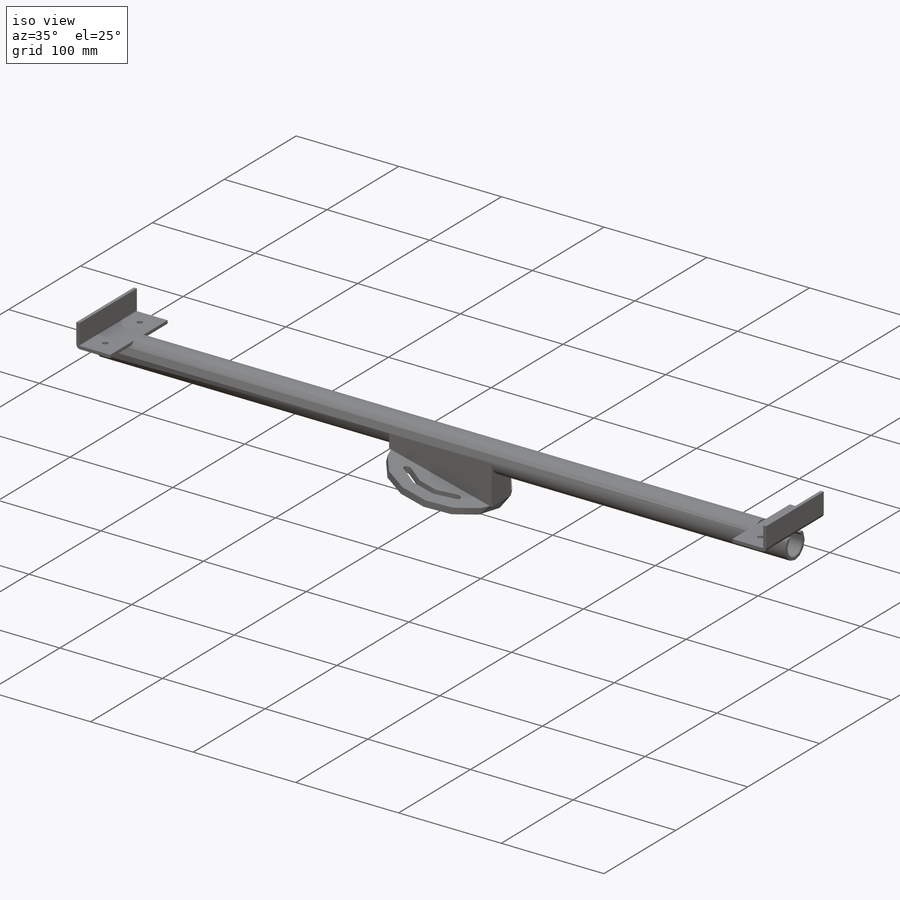
[diagram: iso view]
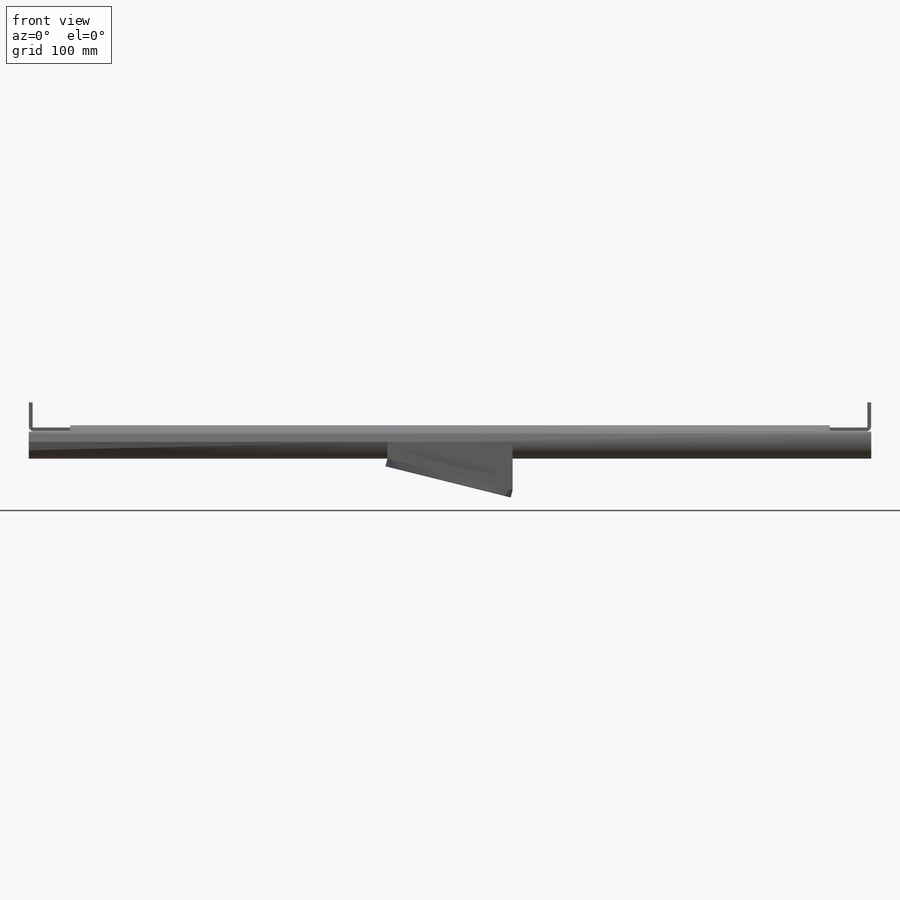
[diagram: front view]
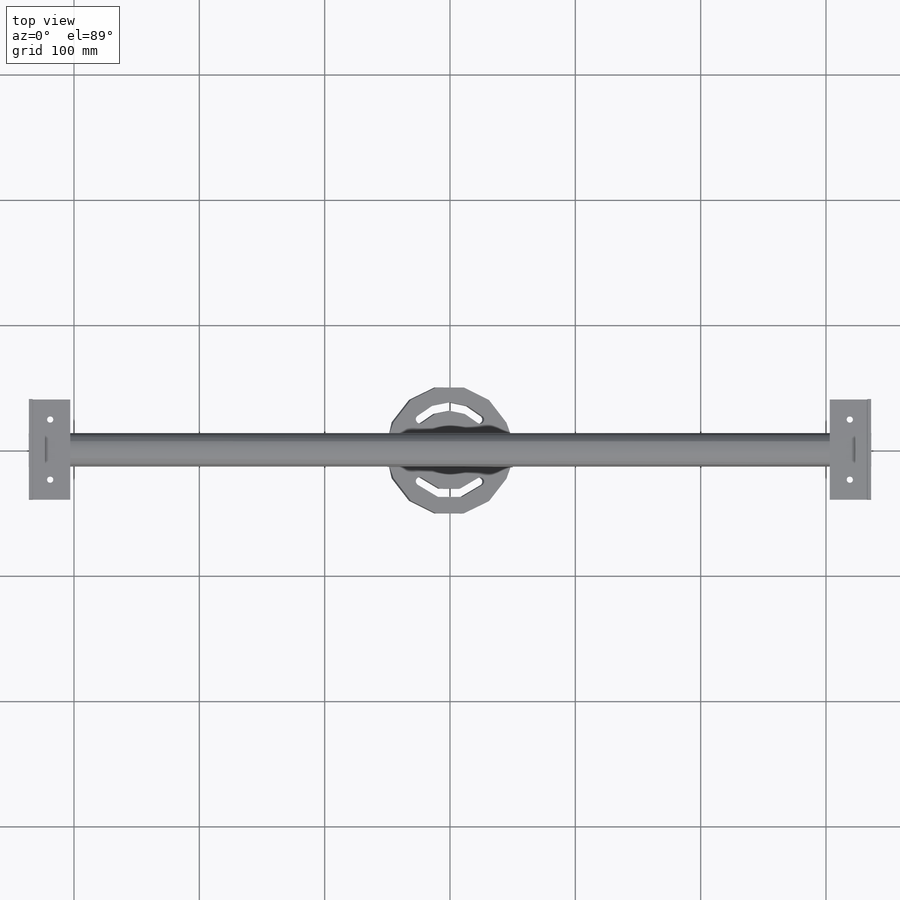
[diagram: top view]
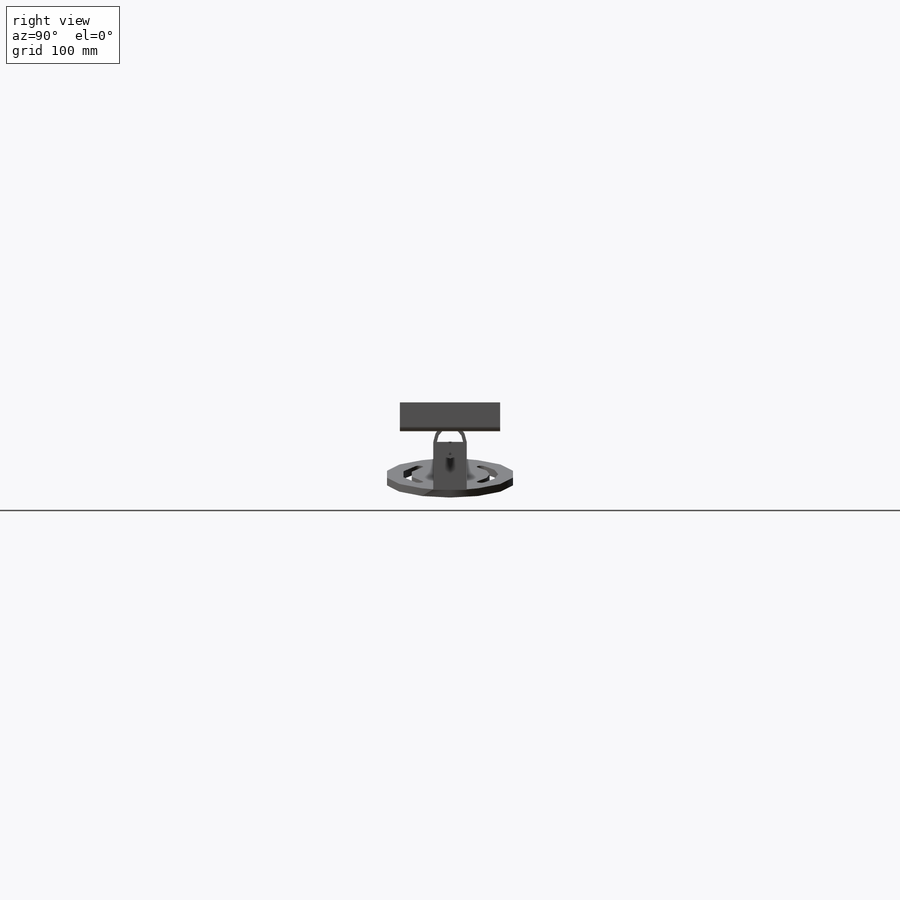
[diagram: right view]
SOLIDWORKS PART (.sldprt)
format: sldprt  version: not decoded by parser v0  size: 652,288 bytes
history: native  units: mm
features: sketch x32, sheet_metal_op x10, mirror x10, extrude x3, cut_extrude x2, hole x2, plane x2, material x1 + 9 further entries (+12 scaffold rows collapsed; 9 parser-record rows omitted)
feature tree (92):
  scaffold x12  (default folders/planes/origin — collapsed)
  material  "Alloy Steel"
  sketch  "Sketch1"  dims[D1=26.67mm D2=2.87mm]
  extrude  "Boss-Extrude1"  Depth=336.1mm
  sketch  "Sketch4"  dims[c1.D1=13.335mm c1.D2=20.0mm c1.D3=14.0mm c2.D1=5.0mm]
  cut_extrude  "Cut-Extrude3"  Depth=33.1mm
  sketch  "Sketch9"  dims[c1.D1=~51.058282deg c2.D1=~1326.450232mm]
  sketch  "Sketch31"  dims[c1.D1=30.0mm c1.D2=20.0mm c1.D3=~1570.796327mm c1.D4=3.175mm c2.D1=0.5mm c2.D2=0.5 c2.D3=0.0deg c2.D6=~28.64789deg]
  sheet_metal_op  "Base-Flange2"
  hole  "#8 (0.199) Diameter Hole4"  Diameter=5.0546mm Depth=50mm
  sketch  "Sketch37"  dims[c1.D1=48.0mm c1.D2=319.0mm c1.D3=24.0mm c2.D1=24.0mm c2.D4=319.0mm]
  sketch  "Sketch36"  dims[hole-wizard template sketch: 34 standard entries collapsed; hole parameters kept: c5.Hole Dia.=5.0546mm c5.Hole Depth=50.0mm c5.Drill Angle=~3141.592654mm]  [1 undecoded]
  mirror  "Mirror4"
  mirror  "Mirror5"
  plane  "Plane1"
  plane  "Plane2"  Offset=25mm
  sketch  "Sketch39"  dims[D1=100.0mm]
  extrude  "Boss-Extrude3"  [1 undecoded]
  sketch  "Sketch40"  dims[D1=75.0mm D2=75.0mm]
  extrude  "Boss-Extrude4"  Depth=6.35mm
  sketch  "Sketch42"  dims[c1.D1=~1570.796327mm c1.D2=~104.025586mm c1.D3=~5497.787144mm c2.D2=~164.969106mm c2.D1=~785.398163mm]
  hole  "1/4 Clearance Hole1"  Diameter=6.7564mm Depth=143.233967mm
  sketch  "Sketch44"  dims[c1.D1=35.0mm c1.D2=35.0mm c1.D3=35.0mm c1.D4=35.0mm c1.D5=20.0mm c1.D6=35.0mm c1.D7=~36.658869mm c2.D6=35.0mm c2.D7=35.0mm c2.D8=35.0mm c2.D9=35.0mm c2.D5=35.0mm c3.D6=35.0mm c3.D7=35.0mm c3.D8=35.0mm]
  sketch  "Sketch43"  dims[hole-wizard template sketch: 44 standard entries collapsed; hole parameters kept: c7.Thru Hole Dia.=6.7564mm c7.Thru Hole Depth=~143.233967mm]
  sketch  "Sketch45"  dims[c1.D1=~37.70782mm c1.D2=~44.774894mm c1.D4=2.515mm c2.D1=6.7564mm c2.D2=6.7564mm c2.D3=35.0mm c2.D4=40.0mm]
  cut_extrude  "Cut-Extrude4"  [1 undecoded]
  sketch  "Bend-Lines4"
  sketch  "Bounding-Box4"
  sheet_metal_op  "Sheet-Metal17"
  "Flat-Pattern17"
  sketch  "Bend-Lines5"
  sketch  "Bounding-Box5"
  parser-record x9  (decoder bookkeeping rows leaked as tree rows — omitted from the tree; the rows remain in map.json)
  mirror  "Sheet-Metal18"
  sheet_metal_op  "Flat-Pattern17"
  sketch  "Bend-Lines5"
  sketch  "Bounding-Box5"
  "Flatten-<BaseBend2>1"
  mirror  "Sheet-Metal19"
  sheet_metal_op  "Flat-Pattern19"
  sketch  "Bend-Lines6"
  sketch  "Bounding-Box6"
  "Flatten-<DerivedBend2>1"
  mirror  "Sheet-Metal20"
  sheet_metal_op  "Flat-Pattern20"
  sketch  "Bend-Lines7"
  sketch  "Bounding-Box7"
  "Flatten-<BaseBend2>2"
  mirror  "Sheet-Metal22"
  sheet_metal_op  "Flat-Pattern22"
  sketch  "Bend-Lines8"
  sketch  "Bounding-Box8"
  "Flatten-<DerivedBend2>2"
  mirror  "Sheet-Metal24"
  sheet_metal_op  "Flat-Pattern22"
  sketch  "Bend-Lines8"
  sketch  "Bounding-Box8"
  "Flatten-<DerivedBend2>2"
  mirror  "Sheet-Metal25"
  sheet_metal_op  "Flat-Pattern22"
  sketch  "Bend-Lines8"
  sketch  "Bounding-Box8"
  "Flatten-<DerivedBend2>2"
  mirror  "Sheet-Metal26"
  sheet_metal_op  "Flat-Pattern22"
  sketch  "Bend-Lines8"
  sketch  "Bounding-Box8"
  "Flatten-<DerivedBend2>2"
  mirror  "Sheet-Metal27"
  sheet_metal_op  "Flat-Pattern22"
  sketch  "Bend-Lines8"
  sketch  "Bounding-Box8"
  "Flatten-<DerivedBend2>2"
decode coverage: 17 of 59 modeling features carry decoded parameters; 9 rows unclassified (native names shown)
note: ~ marks probable driven/reference dimensions
note: 2 parameter values undecoded
note: suppression state not decoded; provenance and decode notes live in map.json
note: 1 required parameter value undecoded (feature->parameter linkage not recoverable at this tier; creation-order binding heuristic only, values carry confidence <= 0.55)
